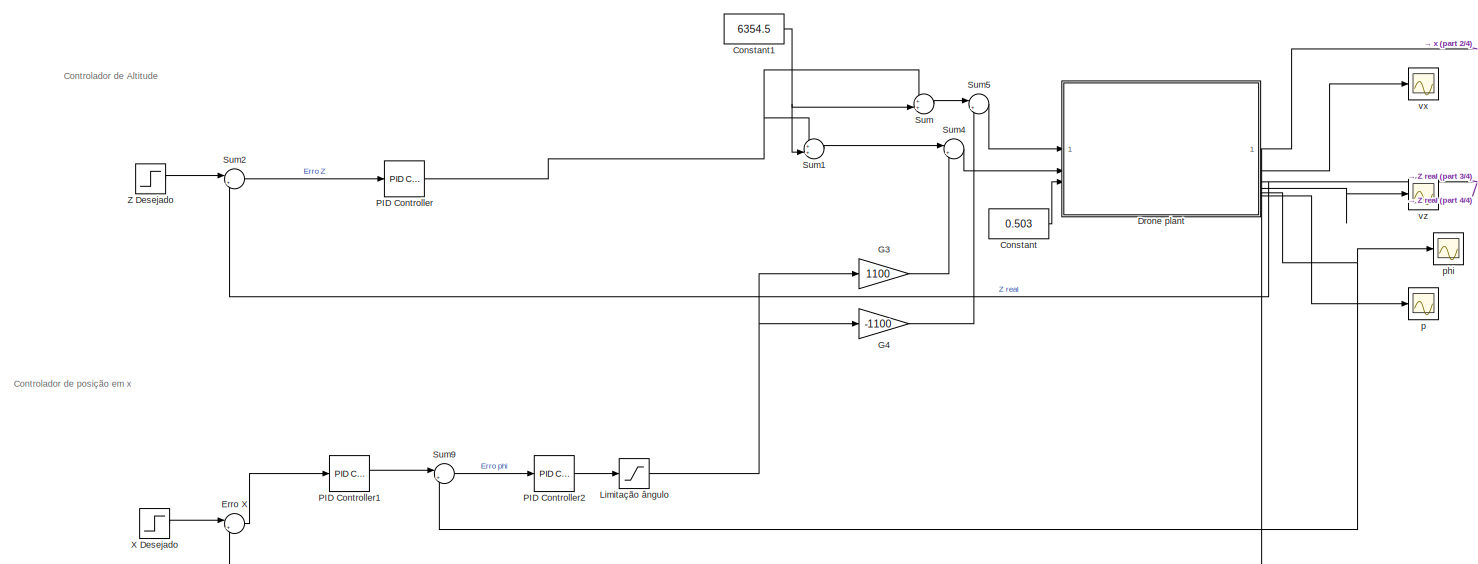
[diagram: root canvas - part 1/4, most of the canvas]
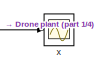
[diagram: root canvas - part 2/4, top right region]
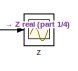
[diagram: root canvas - part 3/4, top right region]
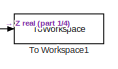
[diagram: root canvas - part 4/4, middle right region]
MODEL slx_4e5af0ccc571
KIND model
CONFIG AbsTol = auto
CONFIG EnableMultiTasking = off
CONFIG FixedStep = auto
CONFIG MaxStep = auto
CONFIG MinStep = auto
CONFIG RelTol = 1e-3
CONFIG SampleTimeConstraint = Unconstrained
CONFIG SolverName = VariableStepAuto
CONFIG StartTime = 0.0
CONFIG StopTime = 50
BLOCK [Constant] Constant
  Value = 0.503
BLOCK [Constant] Constant1
  Value = 6354.5
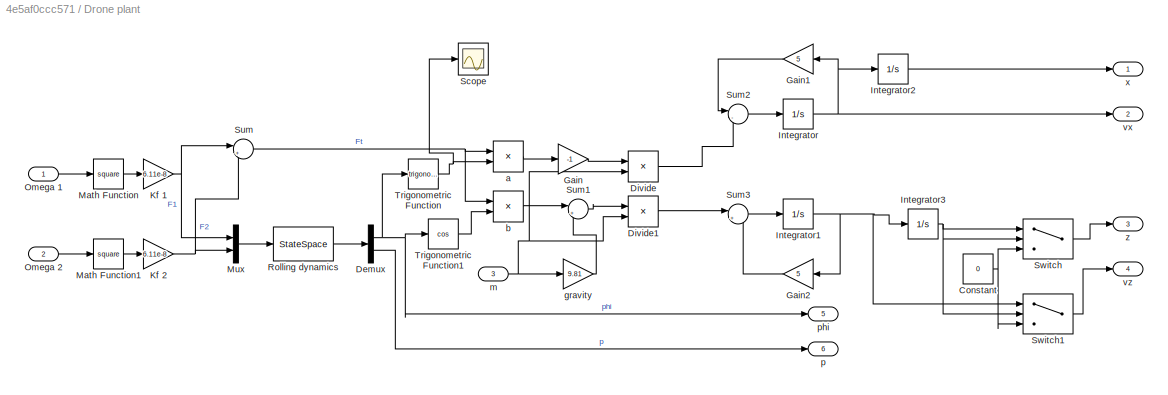
BLOCK [SubSystem] Drone plant
BLOCK [Constant] Drone plant/Constant
  Value = 0
BLOCK [Demux] Drone plant/Demux
  Outputs = 2
BLOCK [Product] Drone plant/Divide
  Inputs = */
BLOCK [Product] Drone plant/Divide1
  Inputs = */
BLOCK [Gain] Drone plant/Gain
  Gain = -1
BLOCK [Gain] Drone plant/Gain1
  Gain = 5
BLOCK [Gain] Drone plant/Gain2
  Gain = 5
BLOCK [Integrator] Drone plant/Integrator
BLOCK [Integrator] Drone plant/Integrator1
BLOCK [Integrator] Drone plant/Integrator2
BLOCK [Integrator] Drone plant/Integrator3
BLOCK [Gain] Drone plant/Kf 1
  Gain = 6.11e-8
BLOCK [Gain] Drone plant/Kf 2
  Gain = 6.11e-8
BLOCK [Math] Drone plant/Math Function
  Operator = square
BLOCK [Math] Drone plant/Math Function1
  Operator = square
BLOCK [Mux] Drone plant/Mux
  DisplayOption = bar
  Inputs = 2
BLOCK [Inport] Drone plant/Omega 1
BLOCK [Inport] Drone plant/Omega 2
  Port = 2
BLOCK [StateSpace] Drone plant/Rolling dynamics
  A = [0 1; 0 -1800]
  B = [0 0; 110.8 -110.8]
  C = [1 0; 0 1]
  D = [0 0; 0 0]
  InitialCondition = 0
BLOCK [Scope] Drone plant/Scope
  Floating = off
  NumInputPorts = 1
  ScopeSpecificationString = Simulink.scopes.TimeScopeBlockCfg('CurrentConfiguration', extmgr.ConfigurationSet(extmgr.Configuration('Core','General UI',true),extmgr.Configuration('Core','Source UI',true),extmgr.Configuration('Sources','WiredSimulink',true,'DataLoggingVariableName','ScopeData1'),extmgr.Configuration('Visuals','Time Domain',true,'SerializedDisplays',{struct('MinYLimReal','-0.12237','MaxYLimReal','0.0136','YLabe...<+1407ch>
BLOCK [Sum] Drone plant/Sum
  Inputs = |++
BLOCK [Sum] Drone plant/Sum1
  Inputs = |+-
BLOCK [Sum] Drone plant/Sum2
  Inputs = |-+
  NameLocation = top
BLOCK [Sum] Drone plant/Sum3
  Inputs = |+-
  NameLocation = top
BLOCK [Switch] Drone plant/Switch
  Criteria = u2 > Threshold
  InputSameDT = off
  SaturateOnIntegerOverflow = off
BLOCK [Switch] Drone plant/Switch1
  Criteria = u2 > Threshold
  InputSameDT = off
  SaturateOnIntegerOverflow = off
BLOCK [Trigonometry] Drone plant/Trigonometric Function
BLOCK [Trigonometry] Drone plant/Trigonometric Function1
  Operator = cos
BLOCK [Product] Drone plant/a
BLOCK [Product] Drone plant/b
BLOCK [Gain] Drone plant/gravity
  Gain = 9.81
BLOCK [Inport] Drone plant/m
  Port = 3
BLOCK [Outport] Drone plant/p
  Port = 6
BLOCK [Outport] Drone plant/phi
  Port = 5
BLOCK [Outport] Drone plant/vx
  Port = 2
BLOCK [Outport] Drone plant/vz
  Port = 4
BLOCK [Outport] Drone plant/x
BLOCK [Outport] Drone plant/z
  Port = 3
BLOCK [Sum] Erro X
  Inputs = |+-
BLOCK [Gain] G3
  Gain = 1100
BLOCK [Gain] G4
  Gain = -1100
BLOCK [Saturate] Limitação ângulo
  LowerLimit = -1
  UpperLimit = 1
BLOCK [Reference] PID Controller  REF=slpidlib/PID Controller
  LibrarySourceBlock = simulink/Continuous/PID Controller
  SourceBlock = slpidlib/PID Controller
  SourceType = PID 1dof
BLOCK [Reference] PID Controller1  REF=slpidlib/PID Controller
  LibrarySourceBlock = simulink/Continuous/PID Controller
  SourceBlock = slpidlib/PID Controller
  SourceType = PID 1dof
BLOCK [Reference] PID Controller2  REF=slpidlib/PID Controller
  LibrarySourceBlock = simulink/Continuous/PID Controller
  SourceBlock = slpidlib/PID Controller
  SourceType = PID 1dof
BLOCK [Sum] Sum
  Inputs = ++|
BLOCK [Sum] Sum1
  Inputs = ++|
BLOCK [Sum] Sum2
  Inputs = |+-
BLOCK [Sum] Sum4
  Inputs = |++
BLOCK [Sum] Sum5
  Inputs = |++
BLOCK [Sum] Sum9
  Inputs = |+-
BLOCK [ToWorkspace] To Workspace1
  FixptAsFi = on
  MaxDataPoints = Inf
  SampleTime = -1
  VariableName = posicao_saida
BLOCK [Step] X Desejado
  After = 5
  SampleTime = 0
BLOCK [Step] Z Desejado
  After = 5
  SampleTime = 0
BLOCK [Scope] p
  Floating = off
  NumInputPorts = 1
  ScopeSpecificationString = Simulink.scopes.TimeScopeBlockCfg('CurrentConfiguration', extmgr.ConfigurationSet(extmgr.Configuration('Core','General UI',true),extmgr.Configuration('Core','Source UI',true),extmgr.Configuration('Sources','WiredSimulink',true,'DataLoggingVariableName','ScopeData6'),extmgr.Configuration('Visuals','Time Domain',true,'SerializedDisplays',{struct('MinYLimReal','-1.00000','MaxYLimReal','1.00000','YLab...<+1372ch>
BLOCK [Scope] phi
  Floating = off
  NumInputPorts = 1
  ScopeSpecificationString = Simulink.scopes.TimeScopeBlockCfg('CurrentConfiguration', extmgr.ConfigurationSet(extmgr.Configuration('Core','General UI',true),extmgr.Configuration('Core','Source UI',true),extmgr.Configuration('Sources','WiredSimulink',true,'DataLoggingVariableName','ScopeData5'),extmgr.Configuration('Visuals','Time Domain',true,'SerializedDisplays',{struct('MinYLimReal','-1.00000','MaxYLimReal','1.00000','YLab...<+1374ch>
BLOCK [Scope] vx
  Floating = off
  NumInputPorts = 1
  ScopeSpecificationString = Simulink.scopes.TimeScopeBlockCfg('CurrentConfiguration', extmgr.ConfigurationSet(extmgr.Configuration('Core','General UI',true),extmgr.Configuration('Core','Source UI',true),extmgr.Configuration('Sources','WiredSimulink',true,'DataLoggingVariableName','ScopeData2'),extmgr.Configuration('Visuals','Time Domain',true,'SerializedDisplays',{struct('MinYLimReal','-1.00000','MaxYLimReal','1.00000','YLab...<+1372ch>
BLOCK [Scope] vz
  Floating = off
  NumInputPorts = 1
  ScopeSpecificationString = Simulink.scopes.TimeScopeBlockCfg('CurrentConfiguration', extmgr.ConfigurationSet(extmgr.Configuration('Core','General UI',true),extmgr.Configuration('Core','Source UI',true),extmgr.Configuration('Sources','WiredSimulink',true,'DataLoggingVariableName','ScopeData4'),extmgr.Configuration('Visuals','Time Domain',true,'SerializedDisplays',{struct('MinYLimReal','-2.29561','MaxYLimReal','20.64756','YLa...<+1403ch>
BLOCK [Scope] x
  Floating = off
  NumInputPorts = 1
  ScopeSpecificationString = Simulink.scopes.TimeScopeBlockCfg('CurrentConfiguration', extmgr.ConfigurationSet(extmgr.Configuration('Core','General UI',true),extmgr.Configuration('Core','Source UI',true),extmgr.Configuration('Sources','WiredSimulink',true,'DataLoggingVariableName','ScopeData1'),extmgr.Configuration('Visuals','Time Domain',true,'SerializedDisplays',{struct('MinYLimReal','-1.89654','MaxYLimReal','17.06885','YLa...<+1449ch>
BLOCK [Scope] z
  Floating = off
  NumInputPorts = 1
  ScopeSpecificationString = Simulink.scopes.TimeScopeBlockCfg('CurrentConfiguration', extmgr.ConfigurationSet(extmgr.Configuration('Core','General UI',true),extmgr.Configuration('Core','Source UI',true),extmgr.Configuration('Sources','WiredSimulink',true,'DataLoggingVariableName','ScopeData3'),extmgr.Configuration('Visuals','Time Domain',true,'SerializedDisplays',{struct('MinYLimReal','-4.54687','MaxYLimReal','40.92184','YLa...<+1441ch>
ANNOTATION (root): Controlador de Altitude
ANNOTATION (root): Controlador de posição em x
NET Constant1:1 -> Sum1:2, Sum:2
LINE Constant:1 -> Drone plant:3
NET Drone plant/Constant:1 -> Drone plant/Switch1:3, Drone plant/Switch:3
NET Drone plant/Demux:1 -> Drone plant/Trigonometric Function1:1, Drone plant/Trigonometric Function:1, Drone plant/phi:1
LINE Drone plant/Demux:2 -> Drone plant/p:1
LINE Drone plant/Divide1:1 -> Drone plant/Sum3:1
LINE Drone plant/Divide:1 -> Drone plant/Sum2:2
LINE Drone plant/Gain1:1 -> Drone plant/Sum2:1
LINE Drone plant/Gain2:1 -> Drone plant/Sum3:2
LINE Drone plant/Gain:1 -> Drone plant/Divide:1
NET Drone plant/Integrator1:1 -> Drone plant/Gain2:1, Drone plant/Integrator3:1, Drone plant/Switch1:1
LINE Drone plant/Integrator2:1 -> Drone plant/x:1
NET Drone plant/Integrator3:1 -> Drone plant/Switch1:2, Drone plant/Switch:1, Drone plant/Switch:2
NET Drone plant/Integrator:1 -> Drone plant/Gain1:1, Drone plant/Integrator2:1, Drone plant/vx:1
NET Drone plant/Kf 1:1 -> Drone plant/Mux:1, Drone plant/Sum:1
NET Drone plant/Kf 2:1 -> Drone plant/Mux:2, Drone plant/Sum:2
LINE Drone plant/Math Function1:1 -> Drone plant/Kf 2:1
LINE Drone plant/Math Function:1 -> Drone plant/Kf 1:1
LINE Drone plant/Mux:1 -> Drone plant/Rolling dynamics:1
LINE Drone plant/Omega 1:1 -> Drone plant/Math Function:1
LINE Drone plant/Omega 2:1 -> Drone plant/Math Function1:1
LINE Drone plant/Rolling dynamics:1 -> Drone plant/Demux:1
LINE Drone plant/Sum1:1 -> Drone plant/Divide1:1
LINE Drone plant/Sum2:1 -> Drone plant/Integrator:1
LINE Drone plant/Sum3:1 -> Drone plant/Integrator1:1
NET Drone plant/Sum:1 -> Drone plant/a:1, Drone plant/b:1
LINE Drone plant/Switch1:1 -> Drone plant/vz:1
LINE Drone plant/Switch:1 -> Drone plant/z:1
LINE Drone plant/Trigonometric Function1:1 -> Drone plant/b:2
NET Drone plant/Trigonometric Function:1 -> Drone plant/Scope:1, Drone plant/a:2
LINE Drone plant/a:1 -> Drone plant/Gain:1
LINE Drone plant/b:1 -> Drone plant/Sum1:1
LINE Drone plant/gravity:1 -> Drone plant/Sum1:2
NET Drone plant/m:1 -> Drone plant/Divide1:2, Drone plant/Divide:2, Drone plant/gravity:1
NET Drone plant:1 -> Erro X:2, x:1
LINE Drone plant:2 -> vx:1
NET Drone plant:3 -> Sum2:2, To Workspace1:1, z:1
LINE Drone plant:4 -> vz:1
NET Drone plant:5 -> Sum9:2, phi:1
LINE Drone plant:6 -> p:1
LINE Erro X:1 -> PID Controller1:1
LINE G3:1 -> Sum4:2
LINE G4:1 -> Sum5:2
NET Limitação ângulo:1 -> G3:1, G4:1
LINE PID Controller1:1 -> Sum9:1
LINE PID Controller2:1 -> Limitação ângulo:1
NET PID Controller:1 -> Sum1:1, Sum:1
LINE Sum1:1 -> Sum4:1
LINE Sum2:1 -> PID Controller:1
LINE Sum4:1 -> Drone plant:2
LINE Sum5:1 -> Drone plant:1
LINE Sum9:1 -> PID Controller2:1
LINE Sum:1 -> Sum5:1
LINE X Desejado:1 -> Erro X:1
LINE Z Desejado:1 -> Sum2:1
note: NET lines group one-source signal fan-out (src -> all destinations, sorted); 1:1 wires keep LINE
